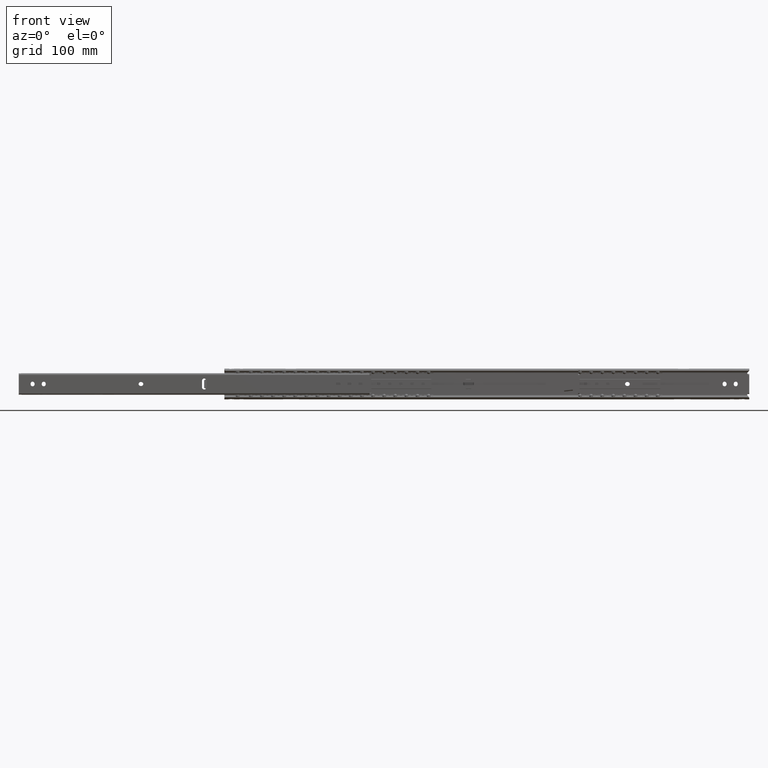
[diagram: clean part render]
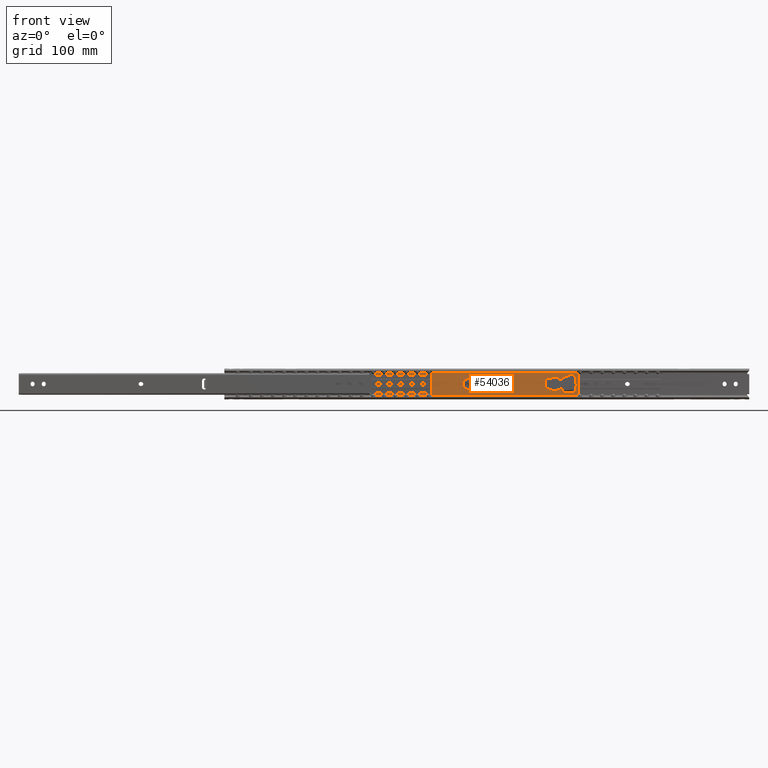
[diagram: same view with one face highlighted and labeled with its STEP entity id]
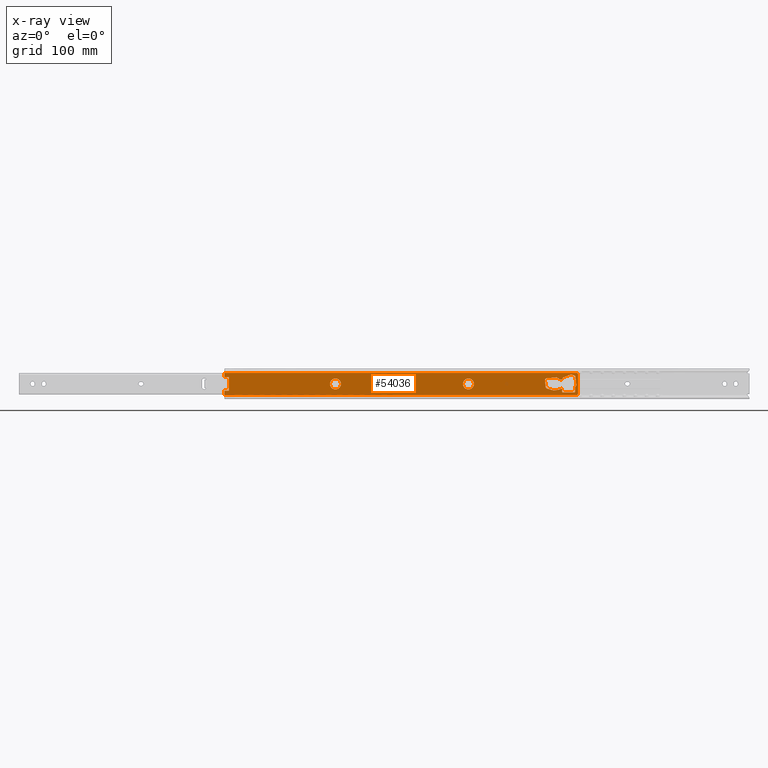
[diagram: x-ray of the same camera — body ghosted, the highlighted face saturated]
A machine part, front view. The second image highlights one B-rep face of the part: STEP entity #54036.
The next image is the same camera in x-ray: the body ghosted, the highlighted face saturated — about 0% of this face is hidden behind the body in this view.
In plain terms, the highlighted face is a freeform B-spline surface patch.
Its self-contained STEP definition (entity closure, byte-faithful):
#50229=CARTESIAN_POINT('',(-11.199999999999999,0.775800015158672,479.201663836139520));
#50230=VERTEX_POINT('',#50229);
#50236=CARTESIAN_POINT('',(-11.199999999999999,6.249999999999943,473.0));
#50237=VERTEX_POINT('',#50236);
#50238=CARTESIAN_POINT('',(-11.199999999999999,6.249999999999943,473.0));
#50239=CARTESIAN_POINT('',(-11.199999999999999,6.249999999999944,478.516866247066280));
#50240=CARTESIAN_POINT('',(-11.199999999999999,0.775800015158672,479.201663836139460));
#50248=(BOUNDED_CURVE()B_SPLINE_CURVE(2,(#50238,#50239,#50240),.UNSPECIFIED.,.F.,.U.)B_SPLINE_CURVE_WITH_KNOTS((3,3),(0.500000000000000,0.728526070911834),.UNSPECIFIED.)CURVE()GEOMETRIC_REPRESENTATION_ITEM()RATIONAL_B_SPLINE_CURVE((1.0,0.732265054031366,0.954005430046765))REPRESENTATION_ITEM(''));
#50249=EDGE_CURVE('',#50237,#50230,#50248,.T.);
#50251=CARTESIAN_POINT('',(-11.199999999999999,-0.054540853814424,466.750237980909620));
#50252=VERTEX_POINT('',#50251);
#50253=CARTESIAN_POINT('',(-11.199999999999999,-0.054540853814424,466.750237980909620));
#50254=CARTESIAN_POINT('',(-11.200000000000003,-0.027270949579368,466.749999999999940));
#50255=CARTESIAN_POINT('',(-11.199999999999999,-5.684342E-014,466.750000000000000));
#50256=CARTESIAN_POINT('',(-11.199999999999999,6.249999999999943,466.750000000000000));
#50257=CARTESIAN_POINT('',(-11.199999999999999,6.249999999999943,473.0));
#50265=(BOUNDED_CURVE()B_SPLINE_CURVE(2,(#50253,#50254,#50255,#50256,#50257),.UNSPECIFIED.,.F.,.U.)B_SPLINE_CURVE_WITH_KNOTS((3,2,3),(0.248460105273283,0.250000000000000,0.500000000000000),.UNSPECIFIED.)CURVE()GEOMETRIC_REPRESENTATION_ITEM()RATIONAL_B_SPLINE_CURVE((0.996414027193833,0.998195901107432,1.0,0.707106781186547,1.0))REPRESENTATION_ITEM(''));
#50266=EDGE_CURVE('',#50252,#50237,#50265,.T.);
#50346=CARTESIAN_POINT('',(-11.199999999999999,-6.250000000000058,473.0));
#50347=VERTEX_POINT('',#50346);
#50348=CARTESIAN_POINT('',(-11.199999999999999,-6.250000000000058,473.0));
#50349=CARTESIAN_POINT('',(-11.199999999999998,-6.250000000000058,466.804304947560690));
#50350=CARTESIAN_POINT('',(-11.200000000000003,-0.054540853814424,466.750237980909620));
#50358=(BOUNDED_CURVE()B_SPLINE_CURVE(2,(#50348,#50349,#50350),.UNSPECIFIED.,.F.,.U.)B_SPLINE_CURVE_WITH_KNOTS((3,3),(0.0,0.248460105273283),.UNSPECIFIED.)CURVE()GEOMETRIC_REPRESENTATION_ITEM()RATIONAL_B_SPLINE_CURVE((1.0,0.708910880079116,0.996414027193833))REPRESENTATION_ITEM(''));
#50359=EDGE_CURVE('',#50347,#50252,#50358,.T.);
#50361=CARTESIAN_POINT('',(-11.199999999999999,0.775800015158672,479.201663836139460));
#50362=CARTESIAN_POINT('',(-11.200000000000001,0.389405799269362,479.249999999999890));
#50363=CARTESIAN_POINT('',(-11.199999999999999,-5.684342E-014,479.249999999999890));
#50364=CARTESIAN_POINT('',(-11.199999999999999,-6.250000000000059,479.249999999999940));
#50365=CARTESIAN_POINT('',(-11.199999999999999,-6.250000000000058,473.0));
#50373=(BOUNDED_CURVE()B_SPLINE_CURVE(2,(#50361,#50362,#50363,#50364,#50365),.UNSPECIFIED.,.F.,.U.)B_SPLINE_CURVE_WITH_KNOTS((3,2,3),(0.728526070911833,0.750000000000000,1.0),.UNSPECIFIED.)CURVE()GEOMETRIC_REPRESENTATION_ITEM()RATIONAL_B_SPLINE_CURVE((0.954005430046764,0.974841727155180,1.0,0.707106781186547,1.0))REPRESENTATION_ITEM(''));
#50374=EDGE_CURVE('',#50230,#50347,#50373,.T.);
#50415=CARTESIAN_POINT('',(-11.199999999999999,0.775800015158680,327.201663836139520));
#50416=VERTEX_POINT('',#50415);
#50422=CARTESIAN_POINT('',(-11.199999999999999,6.249999999999943,321.0));
#50423=VERTEX_POINT('',#50422);
#50424=CARTESIAN_POINT('',(-11.199999999999999,6.249999999999943,321.0));
#50425=CARTESIAN_POINT('',(-11.199999999999999,6.249999999999944,326.516866247066390));
#50426=CARTESIAN_POINT('',(-11.199999999999998,0.775800015158680,327.201663836139460));
#50434=(BOUNDED_CURVE()B_SPLINE_CURVE(2,(#50424,#50425,#50426),.UNSPECIFIED.,.F.,.U.)B_SPLINE_CURVE_WITH_KNOTS((3,3),(0.500000000000000,0.728526070911832),.UNSPECIFIED.)CURVE()GEOMETRIC_REPRESENTATION_ITEM()RATIONAL_B_SPLINE_CURVE((1.0,0.732265054031369,0.954005430046761))REPRESENTATION_ITEM(''));
#50435=EDGE_CURVE('',#50423,#50416,#50434,.T.);
#50437=CARTESIAN_POINT('',(-11.199999999999999,-0.054540853814424,314.750237980909620));
#50438=VERTEX_POINT('',#50437);
#50439=CARTESIAN_POINT('',(-11.199999999999999,-0.054540853814424,314.750237980909620));
#50440=CARTESIAN_POINT('',(-11.200000000000003,-0.027270949579368,314.750000000000060));
#50441=CARTESIAN_POINT('',(-11.199999999999999,-5.684342E-014,314.750000000000110));
#50442=CARTESIAN_POINT('',(-11.199999999999999,6.249999999999943,314.750000000000000));
#50443=CARTESIAN_POINT('',(-11.199999999999999,6.249999999999943,321.0));
#50451=(BOUNDED_CURVE()B_SPLINE_CURVE(2,(#50439,#50440,#50441,#50442,#50443),.UNSPECIFIED.,.F.,.U.)B_SPLINE_CURVE_WITH_KNOTS((3,2,3),(0.248460105273283,0.250000000000000,0.500000000000000),.UNSPECIFIED.)CURVE()GEOMETRIC_REPRESENTATION_ITEM()RATIONAL_B_SPLINE_CURVE((0.996414027193833,0.998195901107432,1.0,0.707106781186547,1.0))REPRESENTATION_ITEM(''));
#50452=EDGE_CURVE('',#50438,#50423,#50451,.T.);
#50532=CARTESIAN_POINT('',(-11.199999999999999,-6.250000000000058,321.0));
#50533=VERTEX_POINT('',#50532);
#50534=CARTESIAN_POINT('',(-11.199999999999999,-6.250000000000058,321.0));
#50535=CARTESIAN_POINT('',(-11.199999999999998,-6.250000000000058,314.804304947560750));
#50536=CARTESIAN_POINT('',(-11.200000000000003,-0.054540853814424,314.750237980909620));
#50544=(BOUNDED_CURVE()B_SPLINE_CURVE(2,(#50534,#50535,#50536),.UNSPECIFIED.,.F.,.U.)B_SPLINE_CURVE_WITH_KNOTS((3,3),(0.0,0.248460105273283),.UNSPECIFIED.)CURVE()GEOMETRIC_REPRESENTATION_ITEM()RATIONAL_B_SPLINE_CURVE((1.0,0.708910880079116,0.996414027193833))REPRESENTATION_ITEM(''));
#50545=EDGE_CURVE('',#50533,#50438,#50544,.T.);
#50547=CARTESIAN_POINT('',(-11.199999999999998,0.775800015158680,327.201663836139460));
#50548=CARTESIAN_POINT('',(-11.199999999999999,0.389405799269370,327.250000000000110));
#50549=CARTESIAN_POINT('',(-11.199999999999999,-5.684342E-014,327.250000000000000));
#50550=CARTESIAN_POINT('',(-11.199999999999999,-6.250000000000059,327.250000000000060));
#50551=CARTESIAN_POINT('',(-11.199999999999999,-6.250000000000058,321.0));
#50559=(BOUNDED_CURVE()B_SPLINE_CURVE(2,(#50547,#50548,#50549,#50550,#50551),.UNSPECIFIED.,.F.,.U.)B_SPLINE_CURVE_WITH_KNOTS((3,2,3),(0.728526070911833,0.750000000000000,1.0),.UNSPECIFIED.)CURVE()GEOMETRIC_REPRESENTATION_ITEM()RATIONAL_B_SPLINE_CURVE((0.954005430046763,0.974841727155180,1.0,0.707106781186547,1.0))REPRESENTATION_ITEM(''));
#50560=EDGE_CURVE('',#50416,#50533,#50559,.T.);
#51164=CARTESIAN_POINT('',(-11.199999999999999,-7.750000000000000,595.0));
#51165=VERTEX_POINT('',#51164);
#51171=CARTESIAN_POINT('',(-11.199999999999999,-7.750000000000091,600.0));
#51172=VERTEX_POINT('',#51171);
#51173=CARTESIAN_POINT('',(-11.199999999999999,-7.750000000000000,595.0));
#51174=CARTESIAN_POINT('',(-11.199999999999999,-7.750000000000091,600.0));
#51175=QUASI_UNIFORM_CURVE('',1,(#51173,#51174),.UNSPECIFIED.,.F.,.U.);
#51176=EDGE_CURVE('',#51165,#51172,#51175,.T.);
#51199=CARTESIAN_POINT('',(-11.199999999999999,7.750000000000000,600.0));
#51200=VERTEX_POINT('',#51199);
#51206=CARTESIAN_POINT('',(-11.199999999999999,7.750000000000000,595.0));
#51207=VERTEX_POINT('',#51206);
#51208=CARTESIAN_POINT('',(-11.199999999999999,7.750000000000000,595.0));
#51209=CARTESIAN_POINT('',(-11.199999999999999,7.750000000000000,600.0));
#51210=QUASI_UNIFORM_CURVE('',1,(#51208,#51209),.UNSPECIFIED.,.F.,.U.);
#51211=EDGE_CURVE('',#51207,#51200,#51210,.T.);
#51280=CARTESIAN_POINT('',(-11.199999999999999,7.750000000000000,595.0));
#51281=CARTESIAN_POINT('',(-11.199999999999999,-7.750000000000000,595.0));
#51282=QUASI_UNIFORM_CURVE('',1,(#51280,#51281),.UNSPECIFIED.,.F.,.U.);
#51283=EDGE_CURVE('',#51207,#51165,#51282,.T.);
#51751=CARTESIAN_POINT('',(-11.199999999999999,-4.144973750220940,233.512270897688010));
#51752=VERTEX_POINT('',#51751);
#51758=CARTESIAN_POINT('',(-11.199999999999999,3.472542000000090,232.700808000000510));
#51759=VERTEX_POINT('',#51758);
#51760=CARTESIAN_POINT('',(-11.199999999999999,-4.144973750220940,233.512270897688010));
#51761=CARTESIAN_POINT('',(-11.199999999999999,3.472542000000090,232.700808000000510));
#51762=QUASI_UNIFORM_CURVE('',1,(#51760,#51761),.UNSPECIFIED.,.F.,.U.);
#51763=EDGE_CURVE('',#51752,#51759,#51762,.T.);
#51788=CARTESIAN_POINT('',(-11.199999999999999,-6.345575000000000,231.735376000000000));
#51789=VERTEX_POINT('',#51788);
#51795=CARTESIAN_POINT('',(-11.199999999999999,-6.345575000000000,231.735376000000000));
#51796=CARTESIAN_POINT('',(-11.200000000000001,-6.257822534576659,232.559142430256710));
#51797=CARTESIAN_POINT('',(-11.199999999999999,-5.613281355827511,233.079582912639010));
#51798=CARTESIAN_POINT('',(-11.200000000000001,-4.968740177078364,233.600023395021280));
#51799=CARTESIAN_POINT('',(-11.199999999999999,-4.144973750220950,233.512270897687900));
#51807=(BOUNDED_CURVE()B_SPLINE_CURVE(2,(#51795,#51796,#51797,#51798,#51799),.UNSPECIFIED.,.F.,.U.)B_SPLINE_CURVE_WITH_KNOTS((3,2,3),(0.0,0.500000000000000,1.0),.UNSPECIFIED.)CURVE()GEOMETRIC_REPRESENTATION_ITEM()RATIONAL_B_SPLINE_CURVE((1.0,0.923879520111802,1.0,0.923879520111802,1.0))REPRESENTATION_ITEM(''));
#51808=EDGE_CURVE('',#51789,#51752,#51807,.T.);
#51820=CARTESIAN_POINT('',(-11.199999999999999,-7.563730999999850,220.300075999999990));
#51821=VERTEX_POINT('',#51820);
#51827=CARTESIAN_POINT('',(-11.199999999999999,-7.563730999999850,220.300075999999990));
#51828=CARTESIAN_POINT('',(-11.199999999999999,-6.345575000000000,231.735376000000000));
#51829=QUASI_UNIFORM_CURVE('',1,(#51827,#51828),.UNSPECIFIED.,.F.,.U.);
#51830=EDGE_CURVE('',#51821,#51789,#51829,.T.);
#51842=CARTESIAN_POINT('',(-11.199999999999999,-5.004315999999930,216.004799999999990));
#51843=VERTEX_POINT('',#51842);
#51849=CARTESIAN_POINT('',(-11.199999999999999,-5.004315999999930,216.004799999999990));
#51850=CARTESIAN_POINT('',(-11.199999999999999,-7.563730999999850,220.300075999999990));
#51851=QUASI_UNIFORM_CURVE('',1,(#51849,#51850),.UNSPECIFIED.,.F.,.U.);
#51852=EDGE_CURVE('',#51843,#51821,#51851,.T.);
#51864=CARTESIAN_POINT('',(-11.199999999999999,-5.322095999999930,213.021678000000010));
#51865=VERTEX_POINT('',#51864);
#51871=CARTESIAN_POINT('',(-11.199999999999999,-5.322095999999930,213.021678000000010));
#51872=CARTESIAN_POINT('',(-11.199999999999999,-5.004315999999930,216.004799999999990));
#51873=QUASI_UNIFORM_CURVE('',1,(#51871,#51872),.UNSPECIFIED.,.F.,.U.);
#51874=EDGE_CURVE('',#51865,#51843,#51873,.T.);
#51888=CARTESIAN_POINT('',(-11.199999999999999,-7.176062000000001,213.219174000000010));
#51889=VERTEX_POINT('',#51888);
#51895=CARTESIAN_POINT('',(-11.199999999999999,-7.176062000000001,213.219174000000010));
#51896=CARTESIAN_POINT('',(-11.199999999999999,-5.322095999999930,213.021678000000010));
#51897=QUASI_UNIFORM_CURVE('',1,(#51895,#51896),.UNSPECIFIED.,.F.,.U.);
#51898=EDGE_CURVE('',#51889,#51865,#51897,.T.);
#51910=CARTESIAN_POINT('',(-11.199999999999999,-10.713725707969520,204.093872278068490));
#51911=VERTEX_POINT('',#51910);
#51917=CARTESIAN_POINT('',(-11.199999999999999,-10.713725707969520,204.093872278068490));
#51918=CARTESIAN_POINT('',(-11.199999999999999,-7.176062000000001,213.219174000000010));
#51919=QUASI_UNIFORM_CURVE('',1,(#51917,#51918),.UNSPECIFIED.,.F.,.U.);
#51920=EDGE_CURVE('',#51911,#51889,#51919,.T.);
#51941=CARTESIAN_POINT('',(-11.199999999999999,-10.663288537917619,202.529404729143490));
#51942=VERTEX_POINT('',#51941);
#51948=CARTESIAN_POINT('',(-11.199999999999999,-10.663288537917481,202.529404729143610));
#51949=CARTESIAN_POINT('',(-11.200000000000001,-11.021136573031688,203.300914798822330));
#51950=CARTESIAN_POINT('',(-11.199999999999999,-10.713725707969520,204.093872278068490));
#51958=(BOUNDED_CURVE()B_SPLINE_CURVE(2,(#51948,#51949,#51950),.UNSPECIFIED.,.F.,.U.)CURVE()GEOMETRIC_REPRESENTATION_ITEM()QUASI_UNIFORM_CURVE()RATIONAL_B_SPLINE_CURVE((1.0,0.920254631210770,1.0))REPRESENTATION_ITEM(''));
#51959=EDGE_CURVE('',#51942,#51911,#51958,.T.);
#51971=CARTESIAN_POINT('',(-11.199999999999999,-8.945364999999839,198.825611000000010));
#51972=VERTEX_POINT('',#51971);
#51978=CARTESIAN_POINT('',(-11.199999999999999,-8.945364999999839,198.825611000000010));
#51979=CARTESIAN_POINT('',(-11.199999999999999,-10.663288537917619,202.529404729143490));
#51980=QUASI_UNIFORM_CURVE('',1,(#51978,#51979),.UNSPECIFIED.,.F.,.U.);
#51981=EDGE_CURVE('',#51972,#51942,#51980,.T.);
#51992=CARTESIAN_POINT('',(-11.199999999999999,1.096959750221004,197.755843102312500));
#51993=VERTEX_POINT('',#51992);
#51999=CARTESIAN_POINT('',(-11.199999999999999,1.096959750221004,197.755843102312500));
#52000=CARTESIAN_POINT('',(-11.199999999999999,-8.945364999999839,198.825611000000010));
#52001=QUASI_UNIFORM_CURVE('',1,(#51999,#52000),.UNSPECIFIED.,.F.,.U.);
#52002=EDGE_CURVE('',#51993,#51972,#52001,.T.);
#52032=CARTESIAN_POINT('',(-11.199999999999999,3.165041499597690,199.0));
#52033=VERTEX_POINT('',#52032);
#52047=CARTESIAN_POINT('',(-11.199999999999999,3.165041499597605,199.0));
#52048=CARTESIAN_POINT('',(-11.200000000000001,2.601673722863696,197.595552023959780));
#52049=CARTESIAN_POINT('',(-11.199999999999999,1.096959750221013,197.755843102312610));
#52057=(BOUNDED_CURVE()B_SPLINE_CURVE(2,(#52047,#52048,#52049),.UNSPECIFIED.,.F.,.U.)CURVE()GEOMETRIC_REPRESENTATION_ITEM()QUASI_UNIFORM_CURVE()RATIONAL_B_SPLINE_CURVE((1.0,0.797461264413208,1.0))REPRESENTATION_ITEM(''));
#52058=EDGE_CURVE('',#52033,#51993,#52057,.T.);
#52156=CARTESIAN_POINT('',(-11.199999999999999,6.854691000000120,218.764140000000000));
#52157=VERTEX_POINT('',#52156);
#52163=CARTESIAN_POINT('',(-11.199999999999999,5.290596032577080,214.0));
#52164=VERTEX_POINT('',#52163);
#52165=CARTESIAN_POINT('',(-11.199999999999999,6.854691000000120,218.764140000000000));
#52166=CARTESIAN_POINT('',(-11.199999999999999,5.290596032577080,214.0));
#52167=QUASI_UNIFORM_CURVE('',1,(#52165,#52166),.UNSPECIFIED.,.F.,.U.);
#52168=EDGE_CURVE('',#52157,#52164,#52167,.T.);
#52185=CARTESIAN_POINT('',(-11.199999999999999,7.384324000000000,223.736009000000000));
#52186=VERTEX_POINT('',#52185);
#52192=CARTESIAN_POINT('',(-11.199999999999999,7.384324000000000,223.736009000000000));
#52193=CARTESIAN_POINT('',(-11.199999999999999,6.854691000000120,218.764140000000000));
#52194=QUASI_UNIFORM_CURVE('',1,(#52192,#52193),.UNSPECIFIED.,.F.,.U.);
#52195=EDGE_CURVE('',#52186,#52157,#52194,.T.);
#52207=CARTESIAN_POINT('',(-11.199999999999999,5.180303000000150,231.273379000000010));
#52208=VERTEX_POINT('',#52207);
#52214=CARTESIAN_POINT('',(-11.199999999999999,5.180303000000150,231.273379000000010));
#52215=CARTESIAN_POINT('',(-11.199999999999999,7.384324000000000,223.736009000000000));
#52216=QUASI_UNIFORM_CURVE('',1,(#52214,#52215),.UNSPECIFIED.,.F.,.U.);
#52217=EDGE_CURVE('',#52208,#52186,#52216,.T.);
#52239=CARTESIAN_POINT('',(-11.199999999999999,3.472542000000090,232.700808000000510));
#52240=CARTESIAN_POINT('',(-11.199999999999999,4.804391672970112,232.558930777230980));
#52241=CARTESIAN_POINT('',(-11.199999999999999,5.180303000000150,231.273379000000010));
#52249=(BOUNDED_CURVE()B_SPLINE_CURVE(2,(#52239,#52240,#52241),.UNSPECIFIED.,.F.,.U.)CURVE()GEOMETRIC_REPRESENTATION_ITEM()QUASI_UNIFORM_CURVE()RATIONAL_B_SPLINE_CURVE((1.0,0.830888069374350,1.0))REPRESENTATION_ITEM(''));
#52250=EDGE_CURVE('',#51759,#52208,#52249,.T.);
#52333=CARTESIAN_POINT('',(-11.199999999999999,8.650000000000000,214.0));
#52334=VERTEX_POINT('',#52333);
#52335=CARTESIAN_POINT('',(-11.199999999999999,9.650000000000000,213.0));
#52336=VERTEX_POINT('',#52335);
#52337=CARTESIAN_POINT('',(-11.199999999999999,8.650000000000000,214.0));
#52338=CARTESIAN_POINT('',(-11.199999999999999,9.650000000000000,214.000000000000030));
#52339=CARTESIAN_POINT('',(-11.199999999999999,9.649999999999999,213.0));
#52347=(BOUNDED_CURVE()B_SPLINE_CURVE(2,(#52337,#52338,#52339),.UNSPECIFIED.,.F.,.U.)CURVE()GEOMETRIC_REPRESENTATION_ITEM()QUASI_UNIFORM_CURVE()RATIONAL_B_SPLINE_CURVE((1.0,0.707106781186548,1.0))REPRESENTATION_ITEM(''));
#52348=EDGE_CURVE('',#52334,#52336,#52347,.T.);
#52386=CARTESIAN_POINT('',(-11.199999999999999,5.290596032577080,214.0));
#52387=CARTESIAN_POINT('',(-11.199999999999999,8.650000000000000,214.0));
#52388=QUASI_UNIFORM_CURVE('',1,(#52386,#52387),.UNSPECIFIED.,.F.,.U.);
#52389=EDGE_CURVE('',#52164,#52334,#52388,.T.);
#52512=CARTESIAN_POINT('',(-11.199999999999999,8.650000000000000,199.0));
#52513=VERTEX_POINT('',#52512);
#52514=CARTESIAN_POINT('',(-11.199999999999999,8.650000000000000,199.0));
#52515=CARTESIAN_POINT('',(-11.199999999999999,3.165041499597690,199.0));
#52516=QUASI_UNIFORM_CURVE('',1,(#52514,#52515),.UNSPECIFIED.,.F.,.U.);
#52517=EDGE_CURVE('',#52513,#52033,#52516,.T.);
#52550=CARTESIAN_POINT('',(-11.199999999999999,9.650000000000000,200.0));
#52551=VERTEX_POINT('',#52550);
#52552=CARTESIAN_POINT('',(-11.199999999999999,9.649999999999999,200.0));
#52553=CARTESIAN_POINT('',(-11.199999999999999,9.650000000000000,199.000000000000060));
#52554=CARTESIAN_POINT('',(-11.199999999999999,8.650000000000000,199.0));
#52562=(BOUNDED_CURVE()B_SPLINE_CURVE(2,(#52552,#52553,#52554),.UNSPECIFIED.,.F.,.U.)CURVE()GEOMETRIC_REPRESENTATION_ITEM()QUASI_UNIFORM_CURVE()RATIONAL_B_SPLINE_CURVE((1.0,0.707106781186548,1.0))REPRESENTATION_ITEM(''));
#52563=EDGE_CURVE('',#52551,#52513,#52562,.T.);
#52594=CARTESIAN_POINT('',(-11.199999999999999,9.650000000000000,213.0));
#52595=CARTESIAN_POINT('',(-11.199999999999999,9.650000000000000,200.0));
#52596=QUASI_UNIFORM_CURVE('',1,(#52594,#52595),.UNSPECIFIED.,.F.,.U.);
#52597=EDGE_CURVE('',#52336,#52551,#52596,.T.);
#52614=CARTESIAN_POINT('',(-11.199999999999999,11.500000000000121,195.599999999999990));
#52615=VERTEX_POINT('',#52614);
#52616=CARTESIAN_POINT('',(-11.199999999999999,-11.500000000000000,195.599999999999990));
#52617=VERTEX_POINT('',#52616);
#52618=CARTESIAN_POINT('',(-11.199999999999999,11.500000000000121,195.599999999999990));
#52619=CARTESIAN_POINT('',(-11.199999999999999,-11.500000000000000,195.599999999999990));
#52620=QUASI_UNIFORM_CURVE('',1,(#52618,#52619),.UNSPECIFIED.,.F.,.U.);
#52621=EDGE_CURVE('',#52615,#52617,#52620,.T.);
#52862=CARTESIAN_POINT('',(-11.199999999999999,12.578916000000040,196.360134746260000));
#52863=VERTEX_POINT('',#52862);
#52864=CARTESIAN_POINT('',(-11.199999999999999,11.500000000000121,195.599999999999990));
#52865=CARTESIAN_POINT('',(-11.199999999999999,11.500000000000126,196.018731150446850));
#52866=CARTESIAN_POINT('',(-11.199999999999999,11.842306945716819,196.259898584543090));
#52867=CARTESIAN_POINT('',(-11.199999999999999,12.184613891433516,196.501066018639390));
#52868=CARTESIAN_POINT('',(-11.199999999999999,12.578916000000101,196.360134746260090));
#52876=(BOUNDED_CURVE()B_SPLINE_CURVE(2,(#52864,#52865,#52866,#52867,#52868),.UNSPECIFIED.,.F.,.U.)B_SPLINE_CURVE_WITH_KNOTS((3,2,3),(0.0,0.500000000000000,1.0),.UNSPECIFIED.)CURVE()GEOMETRIC_REPRESENTATION_ITEM()RATIONAL_B_SPLINE_CURVE((1.0,0.887679040060799,1.0,0.887679040060799,1.0))REPRESENTATION_ITEM(''));
#52877=EDGE_CURVE('',#52615,#52863,#52876,.T.);
#53080=CARTESIAN_POINT('',(-11.199999999999999,-12.578915999999939,196.360134746260000));
#53081=VERTEX_POINT('',#53080);
#53082=CARTESIAN_POINT('',(-11.199999999999999,-12.578916000000000,196.360134746260090));
#53083=CARTESIAN_POINT('',(-11.200000000000001,-12.184613891433408,196.501066018639420));
#53084=CARTESIAN_POINT('',(-11.199999999999999,-11.842306945716720,196.259898584543090));
#53085=CARTESIAN_POINT('',(-11.200000000000001,-11.500000000000018,196.018731150446770));
#53086=CARTESIAN_POINT('',(-11.199999999999999,-11.500000000000020,195.599999999999990));
#53094=(BOUNDED_CURVE()B_SPLINE_CURVE(2,(#53082,#53083,#53084,#53085,#53086),.UNSPECIFIED.,.F.,.U.)B_SPLINE_CURVE_WITH_KNOTS((3,2,3),(0.0,0.500000000000000,1.0),.UNSPECIFIED.)CURVE()GEOMETRIC_REPRESENTATION_ITEM()RATIONAL_B_SPLINE_CURVE((1.0,0.887679040060799,1.0,0.887679040060799,1.0))REPRESENTATION_ITEM(''));
#53095=EDGE_CURVE('',#53081,#52617,#53094,.T.);
#53474=CARTESIAN_POINT('',(-11.199999999999999,12.578916000000040,600.0));
#53475=VERTEX_POINT('',#53474);
#53489=CARTESIAN_POINT('',(-11.199999999999999,12.578916000000040,600.0));
#53490=CARTESIAN_POINT('',(-11.199999999999999,7.750000000000000,600.0));
#53491=QUASI_UNIFORM_CURVE('',1,(#53489,#53490),.UNSPECIFIED.,.F.,.U.);
#53492=EDGE_CURVE('',#53475,#51200,#53491,.T.);
#53495=CARTESIAN_POINT('',(-11.199999999999999,-12.578915999999939,600.0));
#53496=VERTEX_POINT('',#53495);
#53497=CARTESIAN_POINT('',(-11.199999999999999,-7.750000000000091,600.0));
#53498=CARTESIAN_POINT('',(-11.199999999999999,-12.578915999999939,600.0));
#53499=QUASI_UNIFORM_CURVE('',1,(#53497,#53498),.UNSPECIFIED.,.F.,.U.);
#53500=EDGE_CURVE('',#51172,#53496,#53499,.T.);
#53674=CARTESIAN_POINT('',(-11.199999999999999,-12.578915999999939,196.360134746260000));
#53675=CARTESIAN_POINT('',(-11.199999999999999,-12.578915999999939,600.0));
#53676=QUASI_UNIFORM_CURVE('',1,(#53674,#53675),.UNSPECIFIED.,.F.,.U.);
#53677=EDGE_CURVE('',#53081,#53496,#53676,.T.);
#53793=CARTESIAN_POINT('',(-11.199999999999999,12.578916000000040,196.360134746260000));
#53794=CARTESIAN_POINT('',(-11.199999999999999,12.578916000000040,600.0));
#53795=QUASI_UNIFORM_CURVE('',1,(#53793,#53794),.UNSPECIFIED.,.F.,.U.);
#53796=EDGE_CURVE('',#52863,#53475,#53795,.T.);
#53985=CARTESIAN_POINT('',(-11.199999999999999,13.835549333594111,175.400224580023490));
#53986=CARTESIAN_POINT('',(-11.199999999999999,-13.835548433879820,175.400224580023490));
#53987=CARTESIAN_POINT('',(-11.199999999999999,13.835549333594111,620.199789882447480));
#53988=CARTESIAN_POINT('',(-11.199999999999999,-13.835548433879820,620.199789882447480));
#53989=B_SPLINE_SURFACE_WITH_KNOTS('',1,1,((#53985,#53987),(#53986,#53988)),.UNSPECIFIED.,.F.,.F.,.U.,(2,2),(2,2),(0.0,27.671097767473920),(0.0,444.799565302424010),.UNSPECIFIED.);
#53990=ORIENTED_EDGE('',*,*,#51283,.F.);
#53991=ORIENTED_EDGE('',*,*,#51211,.T.);
#53992=ORIENTED_EDGE('',*,*,#53492,.F.);
#53993=ORIENTED_EDGE('',*,*,#53796,.F.);
#53994=ORIENTED_EDGE('',*,*,#52877,.F.);
#53995=ORIENTED_EDGE('',*,*,#52621,.T.);
#53996=ORIENTED_EDGE('',*,*,#53095,.F.);
#53997=ORIENTED_EDGE('',*,*,#53677,.T.);
#53998=ORIENTED_EDGE('',*,*,#53500,.F.);
#53999=ORIENTED_EDGE('',*,*,#51176,.F.);
#54000=EDGE_LOOP('',(#53990,#53991,#53992,#53993,#53994,#53995,#53996,#53997,#53998,#53999));
#54001=FACE_OUTER_BOUND('',#54000,.T.);
#54002=ORIENTED_EDGE('',*,*,#52168,.F.);
#54003=ORIENTED_EDGE('',*,*,#52195,.F.);
#54004=ORIENTED_EDGE('',*,*,#52217,.F.);
#54005=ORIENTED_EDGE('',*,*,#52250,.F.);
#54006=ORIENTED_EDGE('',*,*,#51763,.F.);
#54007=ORIENTED_EDGE('',*,*,#51808,.F.);
#54008=ORIENTED_EDGE('',*,*,#51830,.F.);
#54009=ORIENTED_EDGE('',*,*,#51852,.F.);
#54010=ORIENTED_EDGE('',*,*,#51874,.F.);
#54011=ORIENTED_EDGE('',*,*,#51898,.F.);
#54012=ORIENTED_EDGE('',*,*,#51920,.F.);
#54013=ORIENTED_EDGE('',*,*,#51959,.F.);
#54014=ORIENTED_EDGE('',*,*,#51981,.F.);
#54015=ORIENTED_EDGE('',*,*,#52002,.F.);
#54016=ORIENTED_EDGE('',*,*,#52058,.F.);
#54017=ORIENTED_EDGE('',*,*,#52517,.F.);
#54018=ORIENTED_EDGE('',*,*,#52563,.F.);
#54019=ORIENTED_EDGE('',*,*,#52597,.F.);
#54020=ORIENTED_EDGE('',*,*,#52348,.F.);
#54021=ORIENTED_EDGE('',*,*,#52389,.F.);
#54022=EDGE_LOOP('',(#54002,#54003,#54004,#54005,#54006,#54007,#54008,#54009,#54010,#54011,#54012,#54013,#54014,#54015,#54016,#54017,#54018,#54019,#54020,#54021));
#54023=FACE_BOUND('',#54022,.T.);
#54024=ORIENTED_EDGE('',*,*,#50545,.T.);
#54025=ORIENTED_EDGE('',*,*,#50452,.T.);
#54026=ORIENTED_EDGE('',*,*,#50435,.T.);
#54027=ORIENTED_EDGE('',*,*,#50560,.T.);
#54028=EDGE_LOOP('',(#54024,#54025,#54026,#54027));
#54029=FACE_BOUND('',#54028,.T.);
#54030=ORIENTED_EDGE('',*,*,#50359,.T.);
#54031=ORIENTED_EDGE('',*,*,#50266,.T.);
#54032=ORIENTED_EDGE('',*,*,#50249,.T.);
#54033=ORIENTED_EDGE('',*,*,#50374,.T.);
#54034=EDGE_LOOP('',(#54030,#54031,#54032,#54033));
#54035=FACE_BOUND('',#54034,.T.);
#54036=ADVANCED_FACE('',(#54001,#54023,#54029,#54035),#53989,.T.);